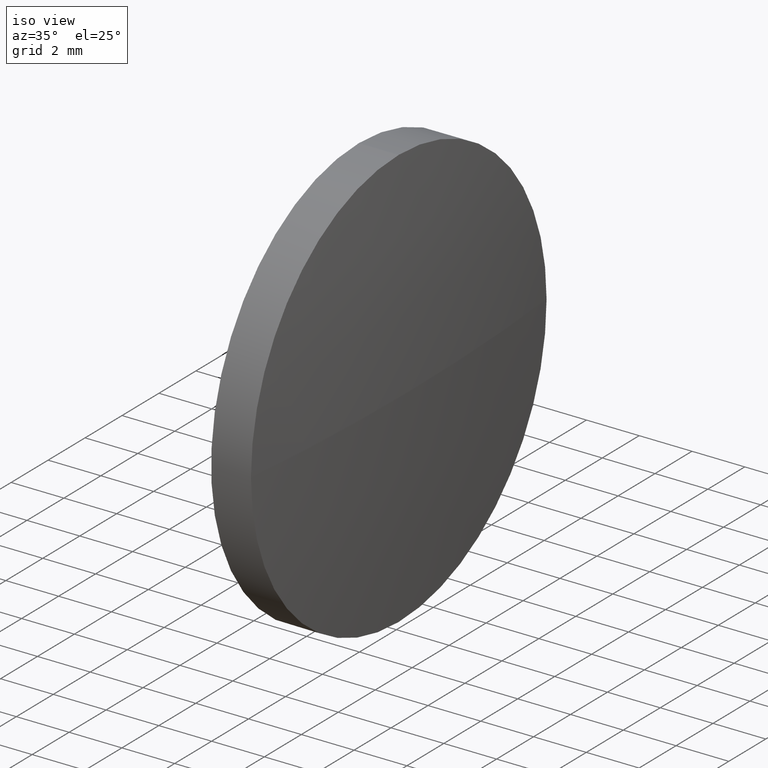
[diagram: clean part render]
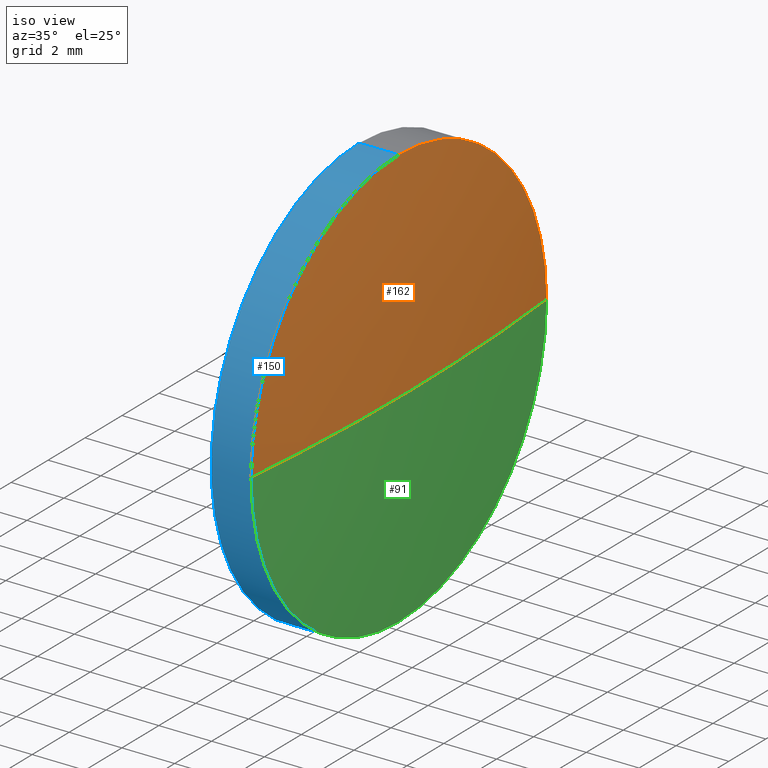
[diagram: same view with three faces highlighted in distinct colors, each labeled with its STEP entity id]
A machine part, iso view with three faces highlighted in distinct colors.
Their STEP definitions:

[orange] entity #162 — the highlighted spherical surface has radius 82.2463 mm.
#2 = CARTESIAN_POINT ( 'NONE',  ( 442.5452059022057900, 159.9103429002040300, 0.0000000000000000000 ) ) ;
#4 = ORIENTED_EDGE ( 'NONE', *, *, #20, .F. ) ;
#6 = EDGE_CURVE ( 'NONE', #128, #19, #161, .T. ) ;
#8 = AXIS2_PLACEMENT_3D ( 'NONE', #74, #105, #171 ) ;
#16 = AXIS2_PLACEMENT_3D ( 'NONE', #22, #176, #151 ) ;
#18 = CARTESIAN_POINT ( 'NONE',  ( 442.1552059022058100, 159.9103429002037700, 0.0000000000000000000 ) ) ;
#19 = VERTEX_POINT ( 'NONE', #88 ) ;
#20 = EDGE_CURVE ( 'NONE', #19, #143, #73, .T. ) ;
#22 = CARTESIAN_POINT ( 'NONE',  ( 360.2989238509231900, 159.9103429002040300, 0.0000000000000000000 ) ) ;
#31 = ORIENTED_EDGE ( 'NONE', *, *, #77, .T. ) ;
#34 = DIRECTION ( 'NONE',  ( 0.0000000000000000000, 0.0000000000000000000, 1.000000000000000000 ) ) ;
#42 = CIRCLE ( 'NONE', #16, 82.24628205128257700 ) ;
#51 = EDGE_CURVE ( 'NONE', #143, #80, #175, .T. ) ;
#73 = CIRCLE ( 'NONE', #8, 7.999999999999979600 ) ;
#74 = CARTESIAN_POINT ( 'NONE',  ( 442.1552059022058100, 159.9103429002037700, 0.0000000000000000000 ) ) ;
#77 = EDGE_CURVE ( 'NONE', #128, #80, #42, .T. ) ;
#80 = VERTEX_POINT ( 'NONE', #125 ) ;
#84 = AXIS2_PLACEMENT_3D ( 'NONE', #18, #186, #34 ) ;
#88 = CARTESIAN_POINT ( 'NONE',  ( 442.1552059022058100, 151.9103429002039400, 0.0000000000000000000 ) ) ;
#93 = FACE_OUTER_BOUND ( 'NONE', #100, .T. ) ;
#99 = ORIENTED_EDGE ( 'NONE', *, *, #51, .F. ) ;
#100 = EDGE_LOOP ( 'NONE', ( #157, #31, #99, #4 ) ) ;
#105 = DIRECTION ( 'NONE',  ( -1.000000000000000000, -0.0000000000000000000, -0.0000000000000000000 ) ) ;
#118 = DIRECTION ( 'NONE',  ( -1.000000000000000000, 0.0000000000000000000, 0.0000000000000000000 ) ) ;
#119 = DIRECTION ( 'NONE',  ( 0.0000000000000000000, 0.0000000000000000000, -1.000000000000000000 ) ) ;
#122 = CARTESIAN_POINT ( 'NONE',  ( 442.1552059022058100, 159.9103429002037700, 7.999999999999979600 ) ) ;
#123 = SPHERICAL_SURFACE ( 'NONE', #182, 82.24628205128257700 ) ;
#125 = CARTESIAN_POINT ( 'NONE',  ( 442.1552059022058100, 167.9103429002038600, 9.797174393178616600E-016 ) ) ;
#128 = VERTEX_POINT ( 'NONE', #2 ) ;
#132 = CARTESIAN_POINT ( 'NONE',  ( 360.2989238509231900, 159.9103429002040300, 0.0000000000000000000 ) ) ;
#143 = VERTEX_POINT ( 'NONE', #122 ) ;
#149 = DIRECTION ( 'NONE',  ( 0.0000000000000000000, -1.000000000000000000, 0.0000000000000000000 ) ) ;
#151 = DIRECTION ( 'NONE',  ( 0.0000000000000000000, -1.000000000000000000, -1.224646799147353200E-016 ) ) ;
#157 = ORIENTED_EDGE ( 'NONE', *, *, #6, .F. ) ;
#161 = CIRCLE ( 'NONE', #184, 82.24628205128259100 ) ;
#162 = ADVANCED_FACE ( 'NONE', ( #93 ), #123, .T. ) ;
#171 = DIRECTION ( 'NONE',  ( 0.0000000000000000000, 0.0000000000000000000, 1.000000000000000000 ) ) ;
#172 = DIRECTION ( 'NONE',  ( 0.0000000000000000000, 0.0000000000000000000, 1.000000000000000000 ) ) ;
#175 = CIRCLE ( 'NONE', #84, 7.999999999999979600 ) ;
#176 = DIRECTION ( 'NONE',  ( 0.0000000000000000000, -1.224646799147353200E-016, 1.000000000000000000 ) ) ;
#177 = CARTESIAN_POINT ( 'NONE',  ( 360.2989238509231900, 159.9103429002040300, 0.0000000000000000000 ) ) ;
#182 = AXIS2_PLACEMENT_3D ( 'NONE', #177, #172, #149 ) ;
#184 = AXIS2_PLACEMENT_3D ( 'NONE', #132, #119, #118 ) ;
#186 = DIRECTION ( 'NONE',  ( -1.000000000000000000, -0.0000000000000000000, -0.0000000000000000000 ) ) ;

[blue] entity #150 — the highlighted cylindrical surface (partial cylindrical patch) has radius 8 mm, axis along (-1, -0, -0).
#7 = LINE ( 'NONE', #89, #82 ) ;
#8 = AXIS2_PLACEMENT_3D ( 'NONE', #74, #105, #171 ) ;
#11 = AXIS2_PLACEMENT_3D ( 'NONE', #25, #160, #66 ) ;
#19 = VERTEX_POINT ( 'NONE', #88 ) ;
#20 = EDGE_CURVE ( 'NONE', #19, #143, #73, .T. ) ;
#21 = DIRECTION ( 'NONE',  ( -1.000000000000000000, -0.0000000000000000000, -0.0000000000000000000 ) ) ;
#23 = CARTESIAN_POINT ( 'NONE',  ( 440.6452059022058700, 159.9103429002037700, 7.999999999999979600 ) ) ;
#25 = CARTESIAN_POINT ( 'NONE',  ( 438.7223891973601400, 159.9103429002037700, 0.0000000000000000000 ) ) ;
#32 = VECTOR ( 'NONE', #64, 1000.000000000000000 ) ;
#35 = DIRECTION ( 'NONE',  ( 0.0000000000000000000, 0.0000000000000000000, 1.000000000000000000 ) ) ;
#45 = FACE_OUTER_BOUND ( 'NONE', #61, .T. ) ;
#46 = ORIENTED_EDGE ( 'NONE', *, *, #117, .T. ) ;
#48 = ORIENTED_EDGE ( 'NONE', *, *, #60, .F. ) ;
#52 = DIRECTION ( 'NONE',  ( -1.000000000000000000, -0.0000000000000000000, -0.0000000000000000000 ) ) ;
#58 = ORIENTED_EDGE ( 'NONE', *, *, #173, .T. ) ;
#60 = EDGE_CURVE ( 'NONE', #108, #141, #147, .T. ) ;
#61 = EDGE_LOOP ( 'NONE', ( #71, #58, #114, #46, #48 ) ) ;
#64 = DIRECTION ( 'NONE',  ( -1.000000000000000000, -0.0000000000000000000, -0.0000000000000000000 ) ) ;
#66 = DIRECTION ( 'NONE',  ( 0.0000000000000000000, 0.0000000000000000000, 1.000000000000000000 ) ) ;
#70 = LINE ( 'NONE', #120, #32 ) ;
#71 = ORIENTED_EDGE ( 'NONE', *, *, #164, .F. ) ;
#73 = CIRCLE ( 'NONE', #8, 7.999999999999979600 ) ;
#74 = CARTESIAN_POINT ( 'NONE',  ( 442.1552059022058100, 159.9103429002037700, 0.0000000000000000000 ) ) ;
#78 = CARTESIAN_POINT ( 'NONE',  ( 442.1552059022058100, 159.9103429002037700, 0.0000000000000000000 ) ) ;
#79 = DIRECTION ( 'NONE',  ( 0.0000000000000000000, 0.0000000000000000000, 1.000000000000000000 ) ) ;
#82 = VECTOR ( 'NONE', #159, 1000.000000000000000 ) ;
#86 = CARTESIAN_POINT ( 'NONE',  ( 442.1552059022058100, 159.9103429002037700, -7.999999999999979600 ) ) ;
#87 = VERTEX_POINT ( 'NONE', #86 ) ;
#88 = CARTESIAN_POINT ( 'NONE',  ( 442.1552059022058100, 151.9103429002039400, 0.0000000000000000000 ) ) ;
#89 = CARTESIAN_POINT ( 'NONE',  ( 438.7223891973601400, 159.9103429002037700, -7.999999999999979600 ) ) ;
#92 = CARTESIAN_POINT ( 'NONE',  ( 440.6452059022058700, 159.9103429002037700, -7.999999999999979600 ) ) ;
#97 = CIRCLE ( 'NONE', #140, 7.999999999999979600 ) ;
#105 = DIRECTION ( 'NONE',  ( -1.000000000000000000, -0.0000000000000000000, -0.0000000000000000000 ) ) ;
#106 = CARTESIAN_POINT ( 'NONE',  ( 440.6452059022058700, 159.9103429002037700, 0.0000000000000000000 ) ) ;
#108 = VERTEX_POINT ( 'NONE', #92 ) ;
#114 = ORIENTED_EDGE ( 'NONE', *, *, #20, .T. ) ;
#117 = EDGE_CURVE ( 'NONE', #143, #141, #70, .T. ) ;
#120 = CARTESIAN_POINT ( 'NONE',  ( 438.7223891973601400, 159.9103429002037700, 7.999999999999979600 ) ) ;
#122 = CARTESIAN_POINT ( 'NONE',  ( 442.1552059022058100, 159.9103429002037700, 7.999999999999979600 ) ) ;
#126 = AXIS2_PLACEMENT_3D ( 'NONE', #106, #21, #35 ) ;
#140 = AXIS2_PLACEMENT_3D ( 'NONE', #78, #52, #79 ) ;
#141 = VERTEX_POINT ( 'NONE', #23 ) ;
#143 = VERTEX_POINT ( 'NONE', #122 ) ;
#146 = CYLINDRICAL_SURFACE ( 'NONE', #11, 7.999999999999979600 ) ;
#147 = CIRCLE ( 'NONE', #126, 7.999999999999979600 ) ;
#150 = ADVANCED_FACE ( 'NONE', ( #45 ), #146, .T. ) ;
#159 = DIRECTION ( 'NONE',  ( -1.000000000000000000, -0.0000000000000000000, -0.0000000000000000000 ) ) ;
#160 = DIRECTION ( 'NONE',  ( -1.000000000000000000, -0.0000000000000000000, -0.0000000000000000000 ) ) ;
#164 = EDGE_CURVE ( 'NONE', #87, #108, #7, .T. ) ;
#171 = DIRECTION ( 'NONE',  ( 0.0000000000000000000, 0.0000000000000000000, 1.000000000000000000 ) ) ;
#173 = EDGE_CURVE ( 'NONE', #87, #19, #97, .T. ) ;

[green] entity #91 — the highlighted spherical surface has radius 82.2463 mm.
#2 = CARTESIAN_POINT ( 'NONE',  ( 442.5452059022057900, 159.9103429002040300, 0.0000000000000000000 ) ) ;
#3 = CARTESIAN_POINT ( 'NONE',  ( 360.2989238509231900, 159.9103429002040300, 0.0000000000000000000 ) ) ;
#6 = EDGE_CURVE ( 'NONE', #128, #19, #161, .T. ) ;
#16 = AXIS2_PLACEMENT_3D ( 'NONE', #22, #176, #151 ) ;
#17 = ORIENTED_EDGE ( 'NONE', *, *, #77, .F. ) ;
#19 = VERTEX_POINT ( 'NONE', #88 ) ;
#22 = CARTESIAN_POINT ( 'NONE',  ( 360.2989238509231900, 159.9103429002040300, 0.0000000000000000000 ) ) ;
#37 = AXIS2_PLACEMENT_3D ( 'NONE', #3, #109, #148 ) ;
#41 = DIRECTION ( 'NONE',  ( -1.000000000000000000, -0.0000000000000000000, -0.0000000000000000000 ) ) ;
#42 = CIRCLE ( 'NONE', #16, 82.24628205128257700 ) ;
#50 = CARTESIAN_POINT ( 'NONE',  ( 442.1552059022058100, 159.9103429002037700, 0.0000000000000000000 ) ) ;
#52 = DIRECTION ( 'NONE',  ( -1.000000000000000000, -0.0000000000000000000, -0.0000000000000000000 ) ) ;
#63 = EDGE_CURVE ( 'NONE', #80, #87, #165, .T. ) ;
#75 = DIRECTION ( 'NONE',  ( 0.0000000000000000000, 0.0000000000000000000, 1.000000000000000000 ) ) ;
#77 = EDGE_CURVE ( 'NONE', #128, #80, #42, .T. ) ;
#78 = CARTESIAN_POINT ( 'NONE',  ( 442.1552059022058100, 159.9103429002037700, 0.0000000000000000000 ) ) ;
#79 = DIRECTION ( 'NONE',  ( 0.0000000000000000000, 0.0000000000000000000, 1.000000000000000000 ) ) ;
#80 = VERTEX_POINT ( 'NONE', #125 ) ;
#86 = CARTESIAN_POINT ( 'NONE',  ( 442.1552059022058100, 159.9103429002037700, -7.999999999999979600 ) ) ;
#87 = VERTEX_POINT ( 'NONE', #86 ) ;
#88 = CARTESIAN_POINT ( 'NONE',  ( 442.1552059022058100, 151.9103429002039400, 0.0000000000000000000 ) ) ;
#91 = ADVANCED_FACE ( 'NONE', ( #183 ), #139, .T. ) ;
#97 = CIRCLE ( 'NONE', #140, 7.999999999999979600 ) ;
#103 = ORIENTED_EDGE ( 'NONE', *, *, #173, .F. ) ;
#109 = DIRECTION ( 'NONE',  ( 0.0000000000000000000, 0.0000000000000000000, 1.000000000000000000 ) ) ;
#116 = EDGE_LOOP ( 'NONE', ( #17, #166, #103, #124 ) ) ;
#118 = DIRECTION ( 'NONE',  ( -1.000000000000000000, 0.0000000000000000000, 0.0000000000000000000 ) ) ;
#119 = DIRECTION ( 'NONE',  ( 0.0000000000000000000, 0.0000000000000000000, -1.000000000000000000 ) ) ;
#124 = ORIENTED_EDGE ( 'NONE', *, *, #63, .F. ) ;
#125 = CARTESIAN_POINT ( 'NONE',  ( 442.1552059022058100, 167.9103429002038600, 9.797174393178616600E-016 ) ) ;
#128 = VERTEX_POINT ( 'NONE', #2 ) ;
#132 = CARTESIAN_POINT ( 'NONE',  ( 360.2989238509231900, 159.9103429002040300, 0.0000000000000000000 ) ) ;
#139 = SPHERICAL_SURFACE ( 'NONE', #37, 82.24628205128257700 ) ;
#140 = AXIS2_PLACEMENT_3D ( 'NONE', #78, #52, #79 ) ;
#148 = DIRECTION ( 'NONE',  ( 0.0000000000000000000, -1.000000000000000000, 0.0000000000000000000 ) ) ;
#151 = DIRECTION ( 'NONE',  ( 0.0000000000000000000, -1.000000000000000000, -1.224646799147353200E-016 ) ) ;
#161 = CIRCLE ( 'NONE', #184, 82.24628205128259100 ) ;
#165 = CIRCLE ( 'NONE', #181, 7.999999999999979600 ) ;
#166 = ORIENTED_EDGE ( 'NONE', *, *, #6, .T. ) ;
#173 = EDGE_CURVE ( 'NONE', #87, #19, #97, .T. ) ;
#176 = DIRECTION ( 'NONE',  ( 0.0000000000000000000, -1.224646799147353200E-016, 1.000000000000000000 ) ) ;
#181 = AXIS2_PLACEMENT_3D ( 'NONE', #50, #41, #75 ) ;
#183 = FACE_OUTER_BOUND ( 'NONE', #116, .T. ) ;
#184 = AXIS2_PLACEMENT_3D ( 'NONE', #132, #119, #118 ) ;